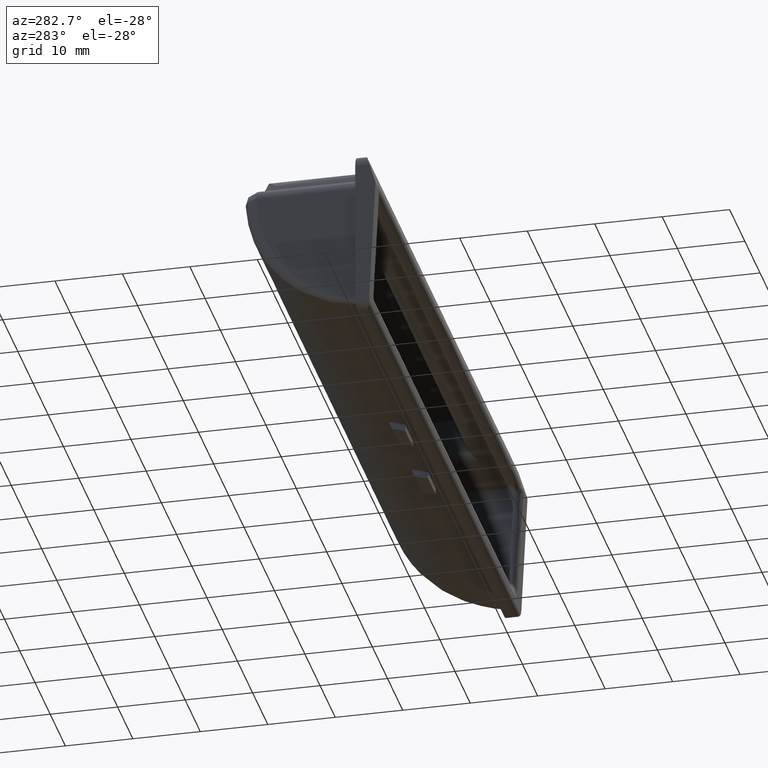
[diagram: clean part render]
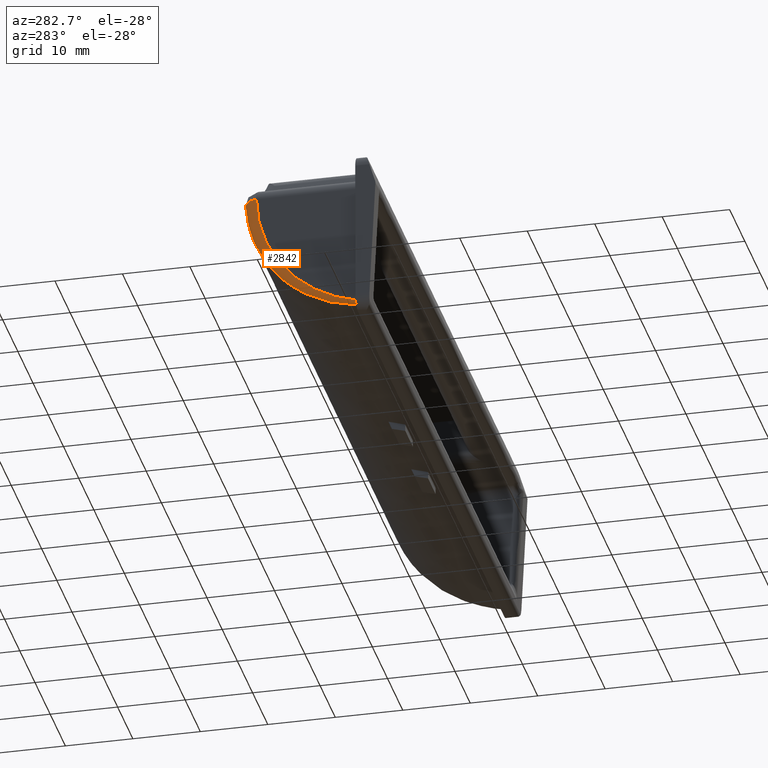
[diagram: same view with one face highlighted and labeled with its STEP entity id]
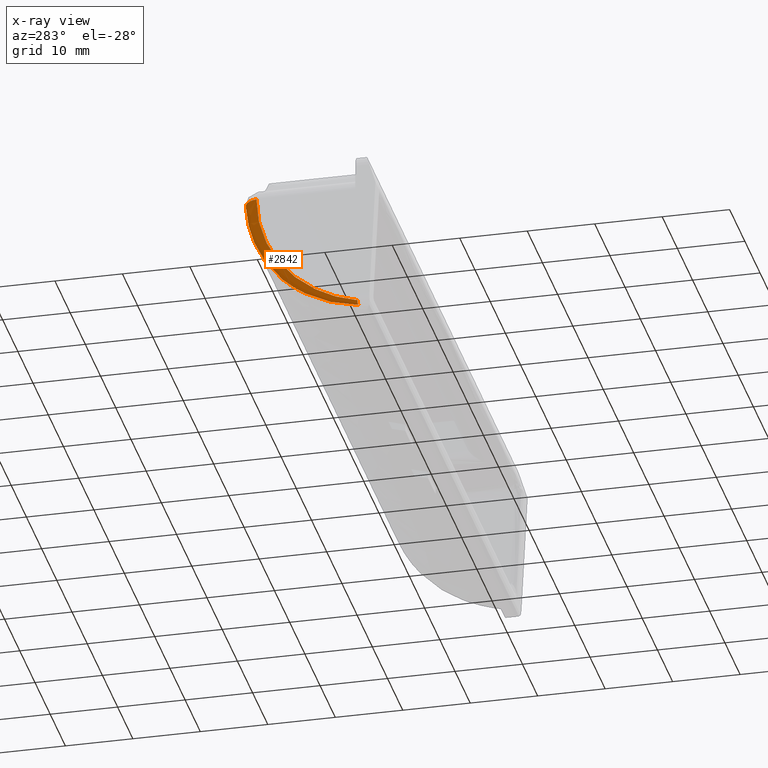
[diagram: x-ray of the same camera — body ghosted, the highlighted face saturated]
A machine part, auxiliary view. The second image highlights one B-rep face of the part: STEP entity #2842.
The next image is the same camera in x-ray: the body ghosted, the highlighted face saturated — about 0% of this face is hidden behind the body in this view.
In plain terms, the highlighted face is a freeform B-spline surface patch.
Its self-contained STEP definition (entity closure, byte-faithful):
#964=CARTESIAN_POINT('',(-48.500000000000000,14.972200755611439,7.749999999999890));
#965=VERTEX_POINT('',#964);
#971=CARTESIAN_POINT('',(-48.500000000000000,0.0,-10.513149020288440));
#972=VERTEX_POINT('',#971);
#973=CARTESIAN_POINT('',(-48.500000000000000,14.972200755611439,7.749999999999890));
#974=CARTESIAN_POINT('',(-48.500000000000007,14.975763557238610,7.084518367823909));
#975=CARTESIAN_POINT('',(-48.500000000000007,14.904246080671429,5.619877582988879));
#976=CARTESIAN_POINT('',(-48.499999999999908,14.550893556195989,3.582602944722318));
#977=CARTESIAN_POINT('',(-48.500000000000092,14.030880728391020,1.825620334165212));
#978=CARTESIAN_POINT('',(-48.500000000000107,13.345104997477391,0.056048525426866));
#979=CARTESIAN_POINT('',(-48.499999999999801,12.381705023663629,-1.811878594927978));
#980=CARTESIAN_POINT('',(-48.500000000000483,11.097387045290279,-3.639752423047392));
#981=CARTESIAN_POINT('',(-48.499999999999751,9.715379582020018,-5.218801724823508));
#982=CARTESIAN_POINT('',(-48.500000000000142,8.125948353506010,-6.691387960333666));
#983=CARTESIAN_POINT('',(-48.499999999999979,6.360225386630130,-7.949179974583664));
#984=CARTESIAN_POINT('',(-48.499999999999702,4.644758485050876,-8.907555439969695));
#985=CARTESIAN_POINT('',(-48.500000000001300,2.640081006700120,-9.809548308371376));
#986=CARTESIAN_POINT('',(-48.499999999998209,1.073674649103773,-10.283186873980171));
#987=CARTESIAN_POINT('',(-48.500000000000000,0.0,-10.513149020288440));
#988=B_SPLINE_CURVE_WITH_KNOTS('',3,(#973,#974,#975,#976,#977,#978,#979,#980,#981,#982,#983,#984,#985,#986,#987),.UNSPECIFIED.,.F.,.U.,(4,1,1,1,1,1,1,1,1,1,1,1,4),(0.000008193765119,1.996533519653926,4.392349015833254,6.189223259020881,7.486978356892045,10.082436777117779,12.478247565937339,14.175326360289830,16.371496813657139,18.966972160415029,20.664026282231521,22.261236506559651,25.555508011014702),.UNSPECIFIED.);
#989=EDGE_CURVE('',#965,#972,#988,.T.);
#2735=CARTESIAN_POINT('',(-48.500000000000426,14.941274116086799,8.000227367481486));
#2736=CARTESIAN_POINT('',(-48.500000000000306,14.948531074696456,7.999923784396701));
#2737=CARTESIAN_POINT('',(-48.500000000000121,14.962898294438086,7.999322755078016));
#2738=CARTESIAN_POINT('',(-48.499999999971614,16.983524141186209,7.914791985612170));
#2739=CARTESIAN_POINT('',(-46.477700802687181,16.983525002519098,7.914795967511545));
#2740=CARTESIAN_POINT('',(-46.463532081900297,16.983525007740230,7.914795994642916));
#2741=CARTESIAN_POINT('',(-46.456477658798676,16.983525010339761,7.914796008151269));
#2742=CARTESIAN_POINT('',(-48.499999999996746,14.985880601054467,5.769741020048175));
#2743=CARTESIAN_POINT('',(-48.499999999997556,14.992608879773792,5.768557251478224));
#2744=CARTESIAN_POINT('',(-48.499999999999176,15.005929426809971,5.766213643939288));
#2745=CARTESIAN_POINT('',(-48.500000000204643,16.879370322402593,5.436627924343248));
#2746=CARTESIAN_POINT('',(-46.614509935558551,16.879357186742187,5.436547767622041));
#2747=CARTESIAN_POINT('',(-46.601299741031319,16.879357109217008,5.436547221254068));
#2748=CARTESIAN_POINT('',(-46.594722555775753,16.879357070609103,5.436546949224869));
#2749=CARTESIAN_POINT('',(-48.500000000001172,14.247606805550403,1.323281406537512));
#2750=CARTESIAN_POINT('',(-48.500000000000881,14.252981534575765,1.320753251112802));
#2751=CARTESIAN_POINT('',(-48.500000000000306,14.263622343916959,1.315748046248902));
#2752=CARTESIAN_POINT('',(-48.500000000039940,15.760070651309405,0.611716284540784));
#2753=CARTESIAN_POINT('',(-46.882994988912635,15.760169131670793,0.612064023262591));
#2754=CARTESIAN_POINT('',(-46.871665824792132,15.760169743633409,0.612066394875059));
#2755=CARTESIAN_POINT('',(-46.866025180284019,15.760170048321768,0.612067575670275));
#2756=CARTESIAN_POINT('',(-48.499999999999964,10.773557684369388,-4.591963284902175));
#2757=CARTESIAN_POINT('',(-48.499999999999979,10.776636189889961,-4.595200944135178));
#2758=CARTESIAN_POINT('',(-48.500000000000021,10.782730969765259,-4.601610814185576));
#2759=CARTESIAN_POINT('',(-48.499999999995850,11.639957403964013,-5.503160130545548));
#2760=CARTESIAN_POINT('',(-47.283219816411687,11.639768839282080,-5.503312890631452));
#2761=CARTESIAN_POINT('',(-47.274694756869366,11.639767491361804,-5.503313986961804));
#2762=CARTESIAN_POINT('',(-47.270450239817841,11.639766820249688,-5.503314532810522));
#2763=CARTESIAN_POINT('',(-48.499999999999361,5.668522885713289,-8.722268971151793));
#2764=CARTESIAN_POINT('',(-48.499999999999517,5.669750378519780,-8.725092406010345));
#2765=CARTESIAN_POINT('',(-48.499999999999879,5.672180550693781,-8.730682200746760));
#2766=CARTESIAN_POINT('',(-48.500000000042853,6.013961328216902,-9.516778450810381));
#2767=CARTESIAN_POINT('',(-47.658294337731760,6.014145007863839,-9.516673942561365));
#2768=CARTESIAN_POINT('',(-47.652397132670714,6.014146394224542,-9.516673107660527));
#2769=CARTESIAN_POINT('',(-47.649460990428693,6.014147084475621,-9.516672691974124));
#2770=CARTESIAN_POINT('',(-48.500000000000547,1.603057083500725,-10.193421429677365));
#2771=CARTESIAN_POINT('',(-48.500000000000419,1.603525561639676,-10.195525835699208));
#2772=CARTESIAN_POINT('',(-48.500000000000149,1.604453047775250,-10.199692107743962));
#2773=CARTESIAN_POINT('',(-48.499999999951982,1.734920749652259,-10.785625948803087));
#2774=CARTESIAN_POINT('',(-47.901639241302327,1.734945091502086,-10.785647659814369));
#2775=CARTESIAN_POINT('',(-47.897446974600037,1.734945315924590,-10.785647757582680));
#2776=CARTESIAN_POINT('',(-47.895359699148848,1.734945427662477,-10.785647806266065));
#2777=CARTESIAN_POINT('',(-48.500000000000163,-0.337189888831385,-10.575570853930218));
#2778=CARTESIAN_POINT('',(-48.500000000000114,-0.336951565260583,-10.577302520031651));
#2779=CARTESIAN_POINT('',(-48.500000000000050,-0.336479735766233,-10.580730847067354));
#2780=CARTESIAN_POINT('',(-48.499999999988439,-0.270122263564956,-11.062896757639628));
#2781=CARTESIAN_POINT('',(-48.013288099529362,-0.270124061400641,-11.062895795338751));
#2782=CARTESIAN_POINT('',(-48.009878077802831,-0.270124076988588,-11.062895791685756));
#2783=CARTESIAN_POINT('',(-48.008180272022976,-0.270124084749625,-11.062895789866973));
#2791=(BOUNDED_SURFACE()B_SPLINE_SURFACE(2,3,((#2735,#2742,#2749,#2756,#2763,#2770,#2777),(#2736,#2743,#2750,#2757,#2764,#2771,#2778),(#2737,#2744,#2751,#2758,#2765,#2772,#2779),(#2738,#2745,#2752,#2759,#2766,#2773,#2780),(#2739,#2746,#2753,#2760,#2767,#2774,#2781),(#2740,#2747,#2754,#2761,#2768,#2775,#2782),(#2741,#2748,#2755,#2762,#2769,#2776,#2783)),.UNSPECIFIED.,.F.,.F.,.U.)B_SPLINE_SURFACE_WITH_KNOTS((3,1,1,1,1,3),(4,1,1,1,4),(0.0,0.017195751316780,0.033892230828218,3.372837283354436,3.389532318096521,3.406232145789444),(0.0,7.452860463171017,14.629010451468780,21.805160439766631,27.887908521324832),.UNSPECIFIED.)GEOMETRIC_REPRESENTATION_ITEM()RATIONAL_B_SPLINE_SURFACE(((1.005946072441375,1.005946072441375,1.005946072441375,1.005946072441375,1.005946072441375,1.005946072441375,1.005946072441375),(1.004437656197964,1.004437656197964,1.004437656197964,1.004437656197964,1.004437656197964,1.004437656197964,1.004437656197964),(1.001464619977276,1.001464619977276,1.001464619977276,1.001464619977276,1.001464619977276,1.001464619977276,1.001464619977276),(0.707106781186552,0.707106781186552,0.707106781186552,0.707106781186552,0.707106781186552,0.707106781186552,0.707106781186552),(1.001464493241694,1.001464493241694,1.001464493241694,1.001464493241694,1.001464493241694,1.001464493241694,1.001464493241694),(1.004393900164105,1.004393900164105,1.004393900164105,1.004393900164105,1.004393900164105,1.004393900164105,1.004393900164105),(1.005858813844823,1.005858813844823,1.005858813844823,1.005858813844823,1.005858813844823,1.005858813844823,1.005858813844823)))REPRESENTATION_ITEM('')SURFACE());
#2792=CARTESIAN_POINT('',(-47.999998401367399,0.0,-11.023720000000200));
#2793=VERTEX_POINT('',#2792);
#2794=CARTESIAN_POINT('',(-48.500000000000000,0.0,-10.513149020288440));
#2795=CARTESIAN_POINT('',(-48.500042416172022,0.0,-10.562806752337320));
#2796=CARTESIAN_POINT('',(-48.487707065537279,0.0,-10.662561669994860));
#2797=CARTESIAN_POINT('',(-48.431380529922322,0.0,-10.784372027364990));
#2798=CARTESIAN_POINT('',(-48.347188175199790,0.0,-10.887361873860140));
#2799=CARTESIAN_POINT('',(-48.248996204160491,0.0,-10.965699400173801));
#2800=CARTESIAN_POINT('',(-48.124418008607762,0.0,-11.014681667145769));
#2801=CARTESIAN_POINT('',(-48.041404587710403,0.0,-11.023732106715480));
#2802=CARTESIAN_POINT('',(-47.999998401367399,0.0,-11.023720000000200));
#2803=B_SPLINE_CURVE_WITH_KNOTS('',3,(#2794,#2795,#2796,#2797,#2798,#2799,#2800,#2801,#2802),.UNSPECIFIED.,.F.,.U.,(4,1,1,1,1,1,4),(0.000025202156008,0.149171757501233,0.298255300021080,0.397715054223843,0.546860021547424,0.671097354068000,0.795401459870655),.UNSPECIFIED.);
#2804=EDGE_CURVE('',#972,#2793,#2803,.T.);
#2805=ORIENTED_EDGE('',*,*,#2804,.F.);
#2806=ORIENTED_EDGE('',*,*,#989,.F.);
#2807=CARTESIAN_POINT('',(-46.500000000000000,16.969111950679348,7.638888888888761));
#2808=VERTEX_POINT('',#2807);
#2809=CARTESIAN_POINT('',(-48.500000000000000,14.972200755611430,7.749999999999891));
#2810=CARTESIAN_POINT('',(-48.494844005930297,15.081187215917630,7.744017467879011));
#2811=CARTESIAN_POINT('',(-48.484719582297657,15.295195432267100,7.732270035905845));
#2812=CARTESIAN_POINT('',(-48.405797274004620,15.601987269234110,7.716091780543229));
#2813=CARTESIAN_POINT('',(-48.288711688867131,15.882314588804061,7.701399586403808));
#2814=CARTESIAN_POINT('',(-48.136659115251838,16.131814961038781,7.688265192696425));
#2815=CARTESIAN_POINT('',(-47.958479465864407,16.347896103162121,7.676669945659461));
#2816=CARTESIAN_POINT('',(-47.761232410982537,16.529516802696101,7.666618031627925));
#2817=CARTESIAN_POINT('',(-47.551767099537017,16.676965889718652,7.658106232149264));
#2818=CARTESIAN_POINT('',(-47.336117426042122,16.791531608811141,7.651137865772134));
#2819=CARTESIAN_POINT('',(-47.119528018179523,16.875531146999919,7.645697756001285));
#2820=CARTESIAN_POINT('',(-46.906393240423277,16.931131596168179,7.641833351659244));
#2821=CARTESIAN_POINT('',(-46.700273184908603,16.963425117916682,7.639376696907944));
#2822=CARTESIAN_POINT('',(-46.565442089180628,16.967253697828490,7.639048287042387));
#2823=CARTESIAN_POINT('',(-46.500000000000000,16.969111950679370,7.638888888888766));
#2824=B_SPLINE_CURVE_WITH_KNOTS('',3,(#2809,#2810,#2811,#2812,#2813,#2814,#2815,#2816,#2817,#2818,#2819,#2820,#2821,#2822,#2823),.UNSPECIFIED.,.F.,.U.,(4,1,1,1,1,1,1,1,1,1,1,1,4),(0.0,0.104193040435187,0.204595751407230,0.301203278051567,0.394013191316692,0.483025080130410,0.568240180744533,0.649661044519180,0.727291245736822,0.801135131531297,0.871197616750650,0.937484027658683,1.0),.UNSPECIFIED.);
#2825=EDGE_CURVE('',#965,#2808,#2824,.T.);
#2826=ORIENTED_EDGE('',*,*,#2825,.T.);
#2827=CARTESIAN_POINT('',(-47.999998401367399,0.0,-11.023720000000200));
#2828=CARTESIAN_POINT('',(-47.874998534586453,2.248673816632060,-10.682558965602020));
#2829=CARTESIAN_POINT('',(-47.749998667805933,4.438089436433053,-9.954217447426700));
#2830=CARTESIAN_POINT('',(-47.499998934244751,8.447948616097063,-7.806491091659477));
#2831=CARTESIAN_POINT('',(-47.374999067464103,10.267491834275280,-6.387588487352834));
#2832=CARTESIAN_POINT('',(-47.124999333902927,13.327661002867540,-3.022018134561161));
#2833=CARTESIAN_POINT('',(-46.999999467122286,14.567599847390429,-1.076106064304717));
#2834=CARTESIAN_POINT('',(-46.749999733561097,16.325344698811499,3.119371522013153));
#2835=CARTESIAN_POINT('',(-46.624999866780591,16.842756035749950,5.367995019118455));
#2836=CARTESIAN_POINT('',(-46.499999999999993,16.969111950679359,7.638888888888809));
#2837=B_SPLINE_CURVE_WITH_KNOTS('',3,(#2827,#2828,#2829,#2830,#2831,#2832,#2833,#2834,#2835,#2836),.UNSPECIFIED.,.F.,.U.,(4,2,2,2,4),(0.0,0.250000000000000,0.500000000000000,0.750000000000000,1.0),.UNSPECIFIED.);
#2838=EDGE_CURVE('',#2793,#2808,#2837,.T.);
#2839=ORIENTED_EDGE('',*,*,#2838,.F.);
#2840=EDGE_LOOP('',(#2805,#2806,#2826,#2839));
#2841=FACE_OUTER_BOUND('',#2840,.T.);
#2842=ADVANCED_FACE('',(#2841),#2791,.T.);